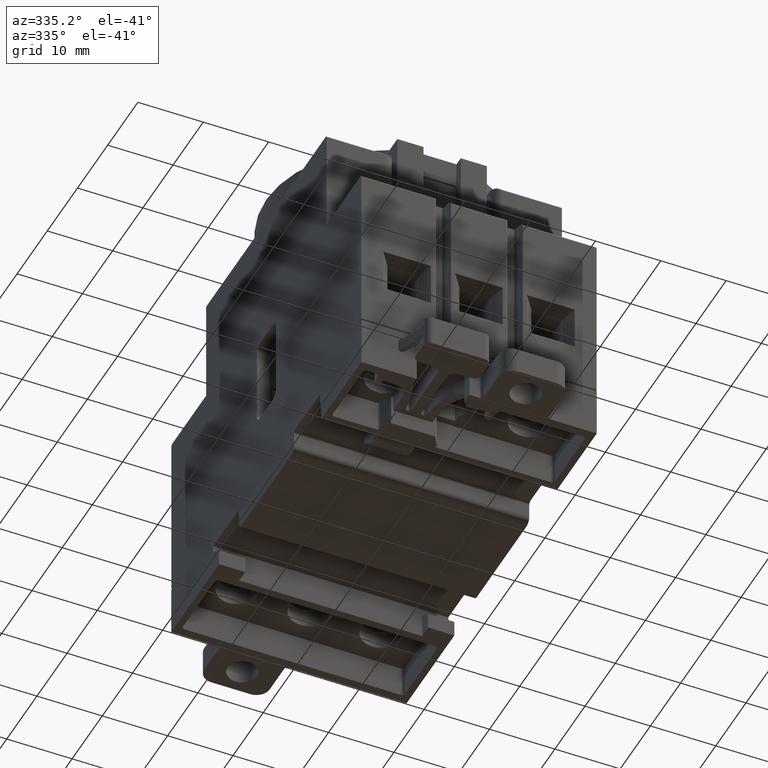
[diagram: clean part render]
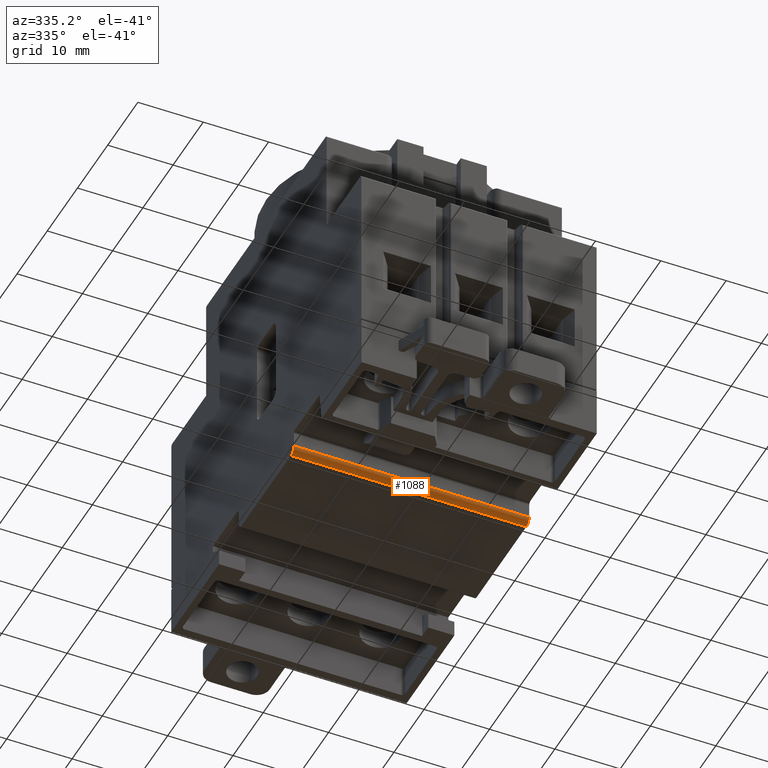
[diagram: same view with one face highlighted and labeled with its STEP entity id]
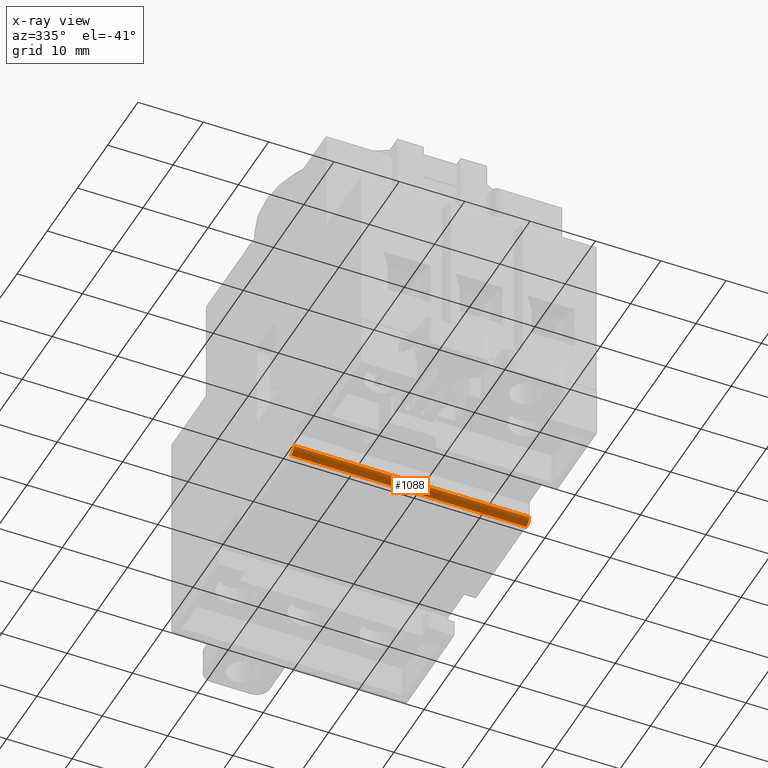
[diagram: x-ray of the same camera — body ghosted, the highlighted face saturated]
A machine part, auxiliary view. The second image highlights one B-rep face of the part: STEP entity #1088.
The next image is the same camera in x-ray: the body ghosted, the highlighted face saturated — about 0% of this face is hidden behind the body in this view.
In plain terms, the highlighted cylindrical surface (edge-blend (fillet) strip) has radius 1 mm, axis along (1, 0, 0).
Its self-contained STEP definition (entity closure, byte-faithful):
#393=CYLINDRICAL_SURFACE('',#10118,1.);
#609=FACE_OUTER_BOUND('',#2091,.T.);
#1088=ADVANCED_FACE('',(#609),#393,.T.);
#2091=EDGE_LOOP('',(#3063,#3064,#3065,#3066));
#2687=CIRCLE('',#10116,1.);
#2688=CIRCLE('',#10117,1.);
#3063=ORIENTED_EDGE('',*,*,#6759,.T.);
#3064=ORIENTED_EDGE('',*,*,#6760,.F.);
#3065=ORIENTED_EDGE('',*,*,#6761,.F.);
#3066=ORIENTED_EDGE('',*,*,#6757,.T.);
#5819=VERTEX_POINT('',#13907);
#5820=VERTEX_POINT('',#13909);
#5821=VERTEX_POINT('',#13913);
#5822=VERTEX_POINT('',#13915);
#6757=EDGE_CURVE('',#5820,#5819,#8094,.T.);
#6759=EDGE_CURVE('',#5819,#5821,#2687,.T.);
#6760=EDGE_CURVE('',#5822,#5821,#8096,.T.);
#6761=EDGE_CURVE('',#5820,#5822,#2688,.T.);
#8094=LINE('',#13908,#9129);
#8096=LINE('',#13914,#9131);
#9129=VECTOR('',#11121,1.);
#9131=VECTOR('',#11127,1.);
#10116=AXIS2_PLACEMENT_3D('',#13912,#11125,#11126);
#10117=AXIS2_PLACEMENT_3D('',#13916,#11128,#11129);
#10118=AXIS2_PLACEMENT_3D('',#13917,#11130,#11131);
#11121=DIRECTION('',(1.,0.,0.));
#11125=DIRECTION('',(-1.,0.,0.));
#11126=DIRECTION('',(0.,0.,1.));
#11127=DIRECTION('',(1.,0.,0.));
#11128=DIRECTION('',(-1.,0.,0.));
#11129=DIRECTION('',(0.,0.,1.));
#11130=DIRECTION('',(1.,0.,0.));
#11131=DIRECTION('',(0.,0.,-1.));
#13907=CARTESIAN_POINT('',(18.,-8.14192181957378,-53.551552607589));
#13908=CARTESIAN_POINT('',(-18.,-8.14192181957378,-53.551552607589));
#13909=CARTESIAN_POINT('',(-18.,-8.14192181957378,-53.551552607589));
#13912=CARTESIAN_POINT('',(18.,-8.14192181957378,-52.551552607589));
#13913=CARTESIAN_POINT('',(18.,-9.14192181957378,-52.5515526043115));
#13914=CARTESIAN_POINT('',(-18.,-9.14192181957378,-52.5515526043115));
#13915=CARTESIAN_POINT('',(-18.,-9.14192181957378,-52.5515526043115));
#13916=CARTESIAN_POINT('',(-18.,-8.14192181957378,-52.551552607589));
#13917=CARTESIAN_POINT('',(-18.,-8.14192181957378,-52.551552607589));